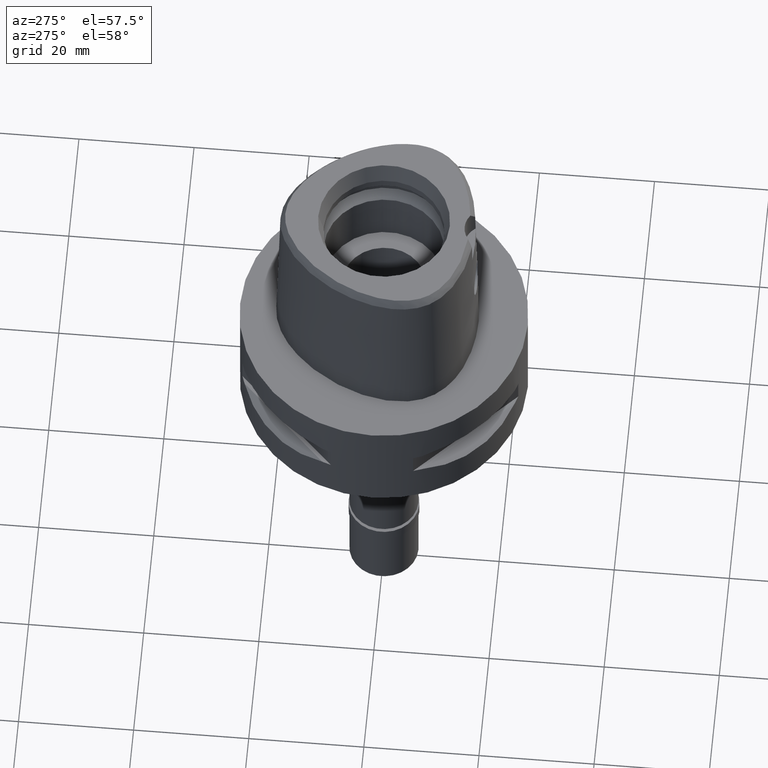
[diagram: clean part render]
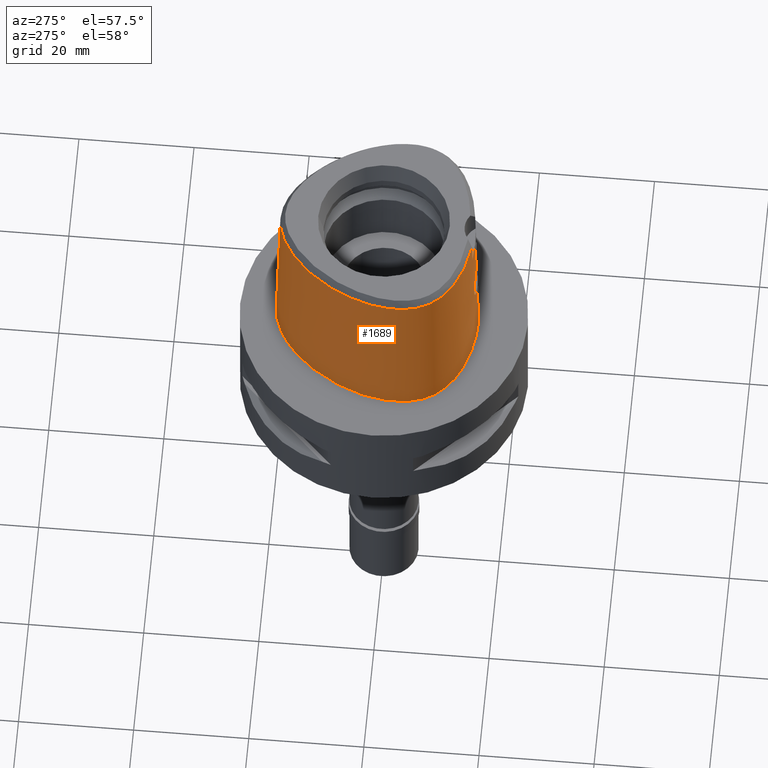
[diagram: same view with one face highlighted and labeled with its STEP entity id]
A machine part, auxiliary view. The second image highlights one B-rep face of the part: STEP entity #1689.
In plain terms, the highlighted face is a freeform B-spline surface patch.
Its self-contained STEP definition (entity closure, byte-faithful):
#7 = FACE_OUTER_BOUND ( 'NONE', #4243, .T. ) ;
#26 = CARTESIAN_POINT ( 'NONE',  ( -2.676760126935361583, -16.01335860443708015, 12.53714519679416917 ) ) ;
#33 = CARTESIAN_POINT ( 'NONE',  ( -4.522582266259999706, 17.29581184233000357, 19.20396091642000158 ) ) ;
#48 = CARTESIAN_POINT ( 'NONE',  ( -2.326795673539356013, -16.05749942887523574, 12.02743345691540355 ) ) ;
#68 = CARTESIAN_POINT ( 'NONE',  ( -2.828519626698094314, -15.99018834924776833, 12.85893844538407649 ) ) ;
#77 = CARTESIAN_POINT ( 'NONE',  ( -7.668807713895000155, 15.44980314576999980, 19.20396091642000158 ) ) ;
#103 = CARTESIAN_POINT ( 'NONE',  ( -17.47781018882999859, -3.270737581818000006, 9.316773117868001108 ) ) ;
#171 = CARTESIAN_POINT ( 'NONE',  ( -11.46563508061945313, 12.45218750032300470, -1.997948017424221179E-08 ) ) ;
#189 = CARTESIAN_POINT ( 'NONE',  ( -8.951632340789998921, -15.05250171730999931, -0.5704146806858000351 ) ) ;
#235 = CARTESIAN_POINT ( 'NONE',  ( -8.782085141137999429, -14.58525468396999969, 19.20396091642000158 ) ) ;
#241 = CARTESIAN_POINT ( 'NONE',  ( -1.331640452534565089, -16.00477934145681047, 16.74576209628363088 ) ) ;
#251 = CARTESIAN_POINT ( 'NONE',  ( 9.149224941310999693E-11, 18.69499999997999851, 2.020975979159000139E-13 ) ) ;
#266 = CARTESIAN_POINT ( 'NONE',  ( -13.05575607499000057, -11.90823715103000069, 29.09114871498000099 ) ) ;
#271 = CARTESIAN_POINT ( 'NONE',  ( -0.9200171648280662806, -16.01717542030823083, 16.90838961258444328 ) ) ;
#296 = CARTESIAN_POINT ( 'NONE',  ( -2.147290074988020603, -15.96826519308855019, 16.16606823402931070 ) ) ;
#320 = CARTESIAN_POINT ( 'NONE',  ( -2.757857542921389182, -15.93590525390334989, 15.30389640928843065 ) ) ;
#323 = B_SPLINE_CURVE_WITH_KNOTS ( 'NONE', 3,
 ( #3612, #2562, #3316, #2950, #4805, #271, #4058, #637, #1399, #686, #2537, #1722, #1775, #241, #1749, #3661, #956, #3590, #4702, #4032, #1350, #2465, #982, #2902, #3958, #3218, #2509, #661, #296, #4003, #2881, #1803, #2191, #3289, #320, #1828, #593, #2856, #1003, #4781, #1425, #2927, #3246, #2093, #4342, #2489, #4731, #1374, #1081, #2970, #1129, #4168, #1541, #424, #4145, #2306, #68, #753, #4466, #3363, #3707, #26, #1945, #4491, #2611, #373, #2677, #1852, #3750, #1873, #48, #4104, #395, #1469, #2281, #351, #2262, #4533, #1922, #2635, #2588, #1152, #3774, #1892, #4442, #4125, #2656, #3387, #1517, #3409 ),
 .UNSPECIFIED., .F., .F.,
 ( 4, 2, 2, 1, 1, 1, 2, 2, 2, 2, 1, 2, 2, 2, 1, 1, 2, 2, 2, 2, 1, 1, 1, 2, 2, 2, 2, 2, 2, 2, 2, 1, 1, 1, 2, 2, 2, 2, 1, 2, 2, 2, 1, 1, 2, 2, 2, 2, 1, 1, 1, 2, 2, 4 ),
 ( 0.0000000000000000000, 0.06250000000001257328, 0.09375000000001874889, 0.1093750000000218436, 0.1171875000000235922, 0.1210937500000246053, 0.1230468750000253408, 0.1250000000000260625, 0.1562500000000369427, 0.1718750000000420775, 0.1796875000000446310, 0.1835937500000459077, 0.1875000000000471567, 0.2187500000000533185, 0.2343750000000560385, 0.2421875000000577594, 0.2460937500000586198, 0.2500000000000594524, 0.3125000000000707767, 0.3437500000000764389, 0.3593750000000792144, 0.3671875000000803246, 0.3710937500000808797, 0.3730468750000808242, 0.3750000000000807687, 0.4375000000000756617, 0.4687500000000731637, 0.4843750000000718869, 0.5000000000000706102, 0.5625000000000655032, 0.5937500000000627276, 0.6093750000000612843, 0.6171875000000606182, 0.6210937500000599520, 0.6230468750000597300, 0.6250000000000593969, 0.6562500000000583977, 0.6718750000000576206, 0.6796875000000570655, 0.6835937500000566214, 0.6875000000000561773, 0.7187500000000522915, 0.7343750000000504041, 0.7421875000000491829, 0.7460937500000486278, 0.7500000000000480727, 0.8125000000000393019, 0.8437500000000349720, 0.8593750000000325295, 0.8671875000000313083, 0.8710937500000306422, 0.8730468750000303091, 0.8750000000000298650, 1.000000000000000000 ),
 .UNSPECIFIED. ) ;
#351 = CARTESIAN_POINT ( 'NONE',  ( -2.167461438340668511, -16.07478142648848518, 11.85411610869220667 ) ) ;
#372 = CARTESIAN_POINT ( 'NONE',  ( -14.26907056455178591, -10.79012254419424899, 28.52071192347005280 ) ) ;
#373 = CARTESIAN_POINT ( 'NONE',  ( -2.567601606276564752, -16.02824055683983673, 12.35375696231888831 ) ) ;
#393 = ORIENTED_EDGE ( 'NONE', *, *, #3799, .T. ) ;
#395 = CARTESIAN_POINT ( 'NONE',  ( -2.218346767529178809, -16.06939536445589667, 11.90655067609835527 ) ) ;
#402 = EDGE_CURVE ( 'NONE', #1822, #652, #2847, .T. ) ;
#424 = CARTESIAN_POINT ( 'NONE',  ( -2.884965141857559701, -15.98065922520799909, 13.00785839096715613 ) ) ;
#431 = CARTESIAN_POINT ( 'NONE',  ( -11.47659488472999989, 12.46143684821999820, -0.5704146806858000351 ) ) ;
#453 = CARTESIAN_POINT ( 'NONE',  ( -11.28662494016000117, 12.30111481238999893, 9.316773117868001108 ) ) ;
#473 = CARTESIAN_POINT ( 'NONE',  ( -17.02224577081999968, -0.3128848842176000788, 19.20396091642000158 ) ) ;
#562 = CARTESIAN_POINT ( 'NONE',  ( -16.45596373045999883, -8.350972137980999577, 9.316773117868001108 ) ) ;
#587 = CARTESIAN_POINT ( 'NONE',  ( -5.009809422728999984, -15.92506882122999734, 9.316773117868001108 ) ) ;
#589 = CARTESIAN_POINT ( 'NONE',  ( -17.56373942983117686, -5.455996093821116943, -1.997948017424221179E-08 ) ) ;
#593 = CARTESIAN_POINT ( 'NONE',  ( -2.804416461968547214, -15.93383585885219844, 15.19914549896493838 ) ) ;
#609 = CARTESIAN_POINT ( 'NONE',  ( -11.44887812729999865, -13.28533851839999969, 19.20396091642000158 ) ) ;
#629 = CARTESIAN_POINT ( 'NONE',  ( -15.57503089602999857, -8.992248279397999866, 29.09114871498000099 ) ) ;
#637 = CARTESIAN_POINT ( 'NONE',  ( -1.080687980687604854, -16.01283629952125054, 16.85233897233315048 ) ) ;
#652 = VERTEX_POINT ( 'NONE', #3675 ) ;
#656 = CARTESIAN_POINT ( 'NONE',  ( -16.00353254970000094, -8.149703180838001160, 29.09114871498000099 ) ) ;
#661 = CARTESIAN_POINT ( 'NONE',  ( -2.139722381399849382, -15.96867257770622217, 16.17353267031746711 ) ) ;
#683 = ORIENTED_EDGE ( 'NONE', *, *, #1291, .T. ) ;
#686 = CARTESIAN_POINT ( 'NONE',  ( -1.142332392165549493, -16.01097948216497713, 16.82800652385463636 ) ) ;
#706 = CARTESIAN_POINT ( 'NONE',  ( -1.893775706186628049, 17.84807082154121716, 28.52071192347005280 ) ) ;
#731 = CARTESIAN_POINT ( 'NONE',  ( -13.06460239552742308, -11.91950051571652125, 28.52071192347005280 ) ) ;
#740 = CARTESIAN_POINT ( 'NONE',  ( -17.33218229471999905, -5.422849682833001062, 9.316773117868001108 ) ) ;
#753 = CARTESIAN_POINT ( 'NONE',  ( -2.823487070365361618, -15.99101270351569681, 12.84654193248369047 ) ) ;
#777 = CARTESIAN_POINT ( 'NONE',  ( -3.191384176940533557, -15.58827403572775339, 27.24714128231333277 ) ) ;
#807 = CARTESIAN_POINT ( 'NONE',  ( -7.514850670160999613, 15.25369622576999973, 29.09114871498000099 ) ) ;
#823 = DIRECTION ( 'NONE',  ( 4.211615255917894324E-12, 0.02499051285773934081, -0.9996876883642746847 ) ) ;
#830 = CARTESIAN_POINT ( 'NONE',  ( -0.4636176460799000254, 18.23430324334999852, 19.20396091642000158 ) ) ;
#918 = CARTESIAN_POINT ( 'NONE',  ( -14.25868488915000043, -10.78027802383000200, 29.09114871498000099 ) ) ;
#948 = CARTESIAN_POINT ( 'NONE',  ( -4.965998101669999443, -15.68039695804000111, 19.20396091642000158 ) ) ;
#952 = CARTESIAN_POINT ( 'NONE',  ( -17.16495051829086904, -7.165908203267024490, -1.997948017424221179E-08 ) ) ;
#956 = CARTESIAN_POINT ( 'NONE',  ( -1.578081282703815091, -15.99520688258742851, 16.61014732801110583 ) ) ;
#975 = CARTESIAN_POINT ( 'NONE',  ( -16.46533705275000159, -6.958244293683000237, 29.09114871498000099 ) ) ;
#978 = B_SPLINE_CURVE_WITH_KNOTS ( 'NONE', 3,
 ( #3954, #2034, #3165, #1272, #3530, #171, #1667, #2433, #4603, #3215, #589, #952, #3189, #4676, #2461, #2090, #1346, #2878, #3355, #2628, #3764, #1461 ),
 .UNSPECIFIED., .F., .F.,
 ( 4, 1, 1, 1, 1, 1, 1, 1, 1, 1, 1, 1, 1, 1, 1, 1, 1, 1, 1, 4 ),
 ( 0.0000000000000000000, 0.04166666666846000067, 0.08333333333505001106, 0.1666666666683000175, 0.2500000000013999912, 0.3333333333346000238, 0.4166666666678000008, 0.5000000000009999779, 0.5416666666675999942, 0.5833333333340999793, 0.6250000000008000267, 0.6458333333340000593, 0.6666666666674000430, 0.6875000000005999645, 0.7083333333339000282, 0.7500000000005000445, 0.7916666666671999808, 0.8333333333336999660, 0.9166666666668999985, 1.000000000000000000 ),
 .UNSPECIFIED. ) ;
#982 = CARTESIAN_POINT ( 'NONE',  ( -1.858121229638787231, -15.98284882596964707, 16.42071856142420572 ) ) ;
#991 = ORIENTED_EDGE ( 'NONE', *, *, #2266, .F. ) ;
#997 = CARTESIAN_POINT ( 'NONE',  ( -1.321318947044999970, -16.50155084573999886, -0.5704146806858000351 ) ) ;
#1003 = CARTESIAN_POINT ( 'NONE',  ( -2.814800487489022451, -15.93339868692384265, 15.17448999603935178 ) ) ;
#1016 = B_SPLINE_CURVE_WITH_KNOTS ( 'NONE', 3,
 ( #2175, #1062, #4787, #2570 ),
 .UNSPECIFIED., .F., .F.,
 ( 4, 4 ),
 ( 0.0000000000000000000, 1.000000000000000000 ),
 .UNSPECIFIED. ) ;
#1062 = CARTESIAN_POINT ( 'NONE',  ( 6.782144086381197205E-08, -15.90128720080419633, 22.15000025259109506 ) ) ;
#1080 = CARTESIAN_POINT ( 'NONE',  ( -8.702202515497454272, -14.36510996956265274, 28.52071192347005280 ) ) ;
#1081 = CARTESIAN_POINT ( 'NONE',  ( -3.049900212868040583, -15.94261167837582605, 13.81468546120752272 ) ) ;
#1128 = CARTESIAN_POINT ( 'NONE',  ( -11.33338053121734568, -13.08225253590195436, 28.52071192347005280 ) ) ;
#1129 = CARTESIAN_POINT ( 'NONE',  ( -2.977125115133987698, -15.96287852150346787, 13.32982323607668107 ) ) ;
#1137 = CARTESIAN_POINT ( 'NONE',  ( -17.72574105970000247, -3.269125760296999861, -0.5704146806858000351 ) ) ;
#1152 = CARTESIAN_POINT ( 'NONE',  ( -1.304824586065963521, -16.14367980511032385, 11.24258093298036343 ) ) ;
#1155 = CARTESIAN_POINT ( 'NONE',  ( -3.168920966622999824, -15.55911077538999976, 28.52071192346999950 ) ) ;
#1159 = CARTESIAN_POINT ( 'NONE',  ( -13.96223224694000109, 8.061115400702000500, 19.20396091642000158 ) ) ;
#1272 = CARTESIAN_POINT ( 'NONE',  ( -4.728927207030408475, 17.73480468795576925, -1.997948017424221179E-08 ) ) ;
#1291 = EDGE_CURVE ( 'NONE', #4007, #4285, #4822, .T. ) ;
#1293 = CARTESIAN_POINT ( 'NONE',  ( 0.5756361491328999547, 18.69183959967999797, -0.5704146806858000351 ) ) ;
#1299 = CARTESIAN_POINT ( 'NONE',  ( 2.030224829794000080E-07, -15.83752876601000281, 24.70000006102999990 ) ) ;
#1317 = CARTESIAN_POINT ( 'NONE',  ( -1.309813752259999964, -16.25411917758000158, 9.316773117868001108 ) ) ;
#1342 = CARTESIAN_POINT ( 'NONE',  ( -16.22974814007999811, -8.250337659409000324, 19.20396091642000158 ) ) ;
#1344 = ORIENTED_EDGE ( 'NONE', *, *, #4231, .F. ) ;
#1346 = CARTESIAN_POINT ( 'NONE',  ( -13.50690093511656187, -12.48264648476968652, -1.997948017424221179E-08 ) ) ;
#1350 = CARTESIAN_POINT ( 'NONE',  ( -1.684236301195920271, -15.99068050411803554, 16.54283389550613492 ) ) ;
#1359 = EDGE_CURVE ( 'NONE', #3188, #1777, #1016, .T. ) ;
#1367 = CARTESIAN_POINT ( 'NONE',  ( -1.286803362689000085, -15.75925584125999812, 29.09114871498000099 ) ) ;
#1374 = CARTESIAN_POINT ( 'NONE',  ( -3.050024389103566325, -15.93682728871436893, 14.04426652284395693 ) ) ;
#1382 = VECTOR ( 'NONE', #1686, 1000.000000000000114 ) ;
#1393 = CARTESIAN_POINT ( 'NONE',  ( -13.20908635414000010, -12.10346123817999953, 19.20396091642000158 ) ) ;
#1399 = CARTESIAN_POINT ( 'NONE',  ( -1.123850819245109767, -16.01154604563820882, 16.83544840130055320 ) ) ;
#1425 = CARTESIAN_POINT ( 'NONE',  ( -2.897875851387718527, -15.92997726602834341, 14.97345579578013997 ) ) ;
#1446 = CARTESIAN_POINT ( 'NONE',  ( -10.91764528035567849, 11.98972044748084542, 28.52071192347005280 ) ) ;
#1461 = CARTESIAN_POINT ( 'NONE',  ( -2.483279531538000286E-11, -16.45500000000000185, 2.033558506771999855E-13 ) ) ;
#1469 = CARTESIAN_POINT ( 'NONE',  ( -2.192347023517017490, -16.07215629485219210, 11.87955887064578420 ) ) ;
#1490 = CARTESIAN_POINT ( 'NONE',  ( -16.79165457291478702, -0.3537785057483261442, 28.52071192347005280 ) ) ;
#1500 = CARTESIAN_POINT ( 'NONE',  ( 2.030224829794000080E-07, -15.83752876601000281, 24.70000006102999990 ) ) ;
#1501 = CARTESIAN_POINT ( 'NONE',  ( -15.82879753374000131, 3.455165198570000484, 29.09114871498000099 ) ) ;
#1517 = CARTESIAN_POINT ( 'NONE',  ( -0.3804472261490731144, -16.18126839358999547, 10.94999999999999751 ) ) ;
#1525 = CARTESIAN_POINT ( 'NONE',  ( -14.39249255184999932, 8.309508948492998925, -0.5704146806858000351 ) ) ;
#1541 = CARTESIAN_POINT ( 'NONE',  ( -2.909137552899625945, -15.97627371699405430, 13.08234413149750885 ) ) ;
#1542 = CARTESIAN_POINT ( 'NONE',  ( -2.866356467587000151E-11, 17.98202997909999823, 28.52071728569000086 ) ) ;
#1572 = CARTESIAN_POINT ( 'NONE',  ( -7.976721801362999464, 15.84201698576999995, -0.5704146806858000351 ) ) ;
#1597 = CARTESIAN_POINT ( 'NONE',  ( -17.22987931796000183, -3.272349403339000151, 19.20396091642000158 ) ) ;
#1667 = CARTESIAN_POINT ( 'NONE',  ( -14.38008119733511769, 8.302343750250026133, -1.997948017424221179E-08 ) ) ;
#1686 = DIRECTION ( 'NONE',  ( -1.984917666635950976E-12, -0.02499051295371941192, -0.9996876883618752707 ) ) ;
#1688 = CARTESIAN_POINT ( 'NONE',  ( -16.84071409064999969, -5.352498116804000006, 29.09114871498000099 ) ) ;
#1689 = ADVANCED_FACE ( 'NONE', ( #7 ), #2728, .T. ) ;
#1722 = CARTESIAN_POINT ( 'NONE',  ( -1.161963448143041200, -16.01037049747069929, 16.81999471490744824 ) ) ;
#1730 = B_SPLINE_CURVE_WITH_KNOTS ( 'NONE', 3,
 ( #1299, #4312, #2754, #4221 ),
 .UNSPECIFIED., .F., .F.,
 ( 4, 4 ),
 ( 0.0000000000000000000, 1.000000000000000000 ),
 .UNSPECIFIED. ) ;
#1740 = CARTESIAN_POINT ( 'NONE',  ( -17.17866842889000267, -7.169980044486000459, -0.5704146806858000351 ) ) ;
#1741 = VECTOR ( 'NONE', #823, 1000.000000000000114 ) ;
#1749 = CARTESIAN_POINT ( 'NONE',  ( -1.464230115295340973, -15.99978155752990538, 16.67600899017843119 ) ) ;
#1769 = CARTESIAN_POINT ( 'NONE',  ( 1.089046662257999953, -16.44835921873999851, -0.5704146806858000351 ) ) ;
#1775 = CARTESIAN_POINT ( 'NONE',  ( -1.246904710687278595, -16.00770134240468323, 16.78481881917274876 ) ) ;
#1777 = VERTEX_POINT ( 'NONE', #2209 ) ;
#1803 = CARTESIAN_POINT ( 'NONE',  ( -2.615901618694458364, -15.94298692150383800, 15.57147967510174880 ) ) ;
#1822 = VERTEX_POINT ( 'NONE', #3747 ) ;
#1826 = CARTESIAN_POINT ( 'NONE',  ( -13.75951393052746496, 7.944084103042573730, 28.52071192347005280 ) ) ;
#1828 = CARTESIAN_POINT ( 'NONE',  ( -2.789432624428044516, -15.93448362604004842, 15.23385107220369861 ) ) ;
#1852 = CARTESIAN_POINT ( 'NONE',  ( -2.543826128444885537, -16.03134158490991368, 12.31726274100129181 ) ) ;
#1872 = CARTESIAN_POINT ( 'NONE',  ( -16.85489160761262184, -5.354527567564943524, 28.52071192347005280 ) ) ;
#1873 = CARTESIAN_POINT ( 'NONE',  ( -2.421847348362509589, -16.04659734725418829, 12.14335169878023102 ) ) ;
#1892 = CARTESIAN_POINT ( 'NONE',  ( -1.200046882047371088, -16.14948273154543656, 11.19596910874573226 ) ) ;
#1903 = CARTESIAN_POINT ( 'NONE',  ( 0.3539521785775999740, 17.96246305550999622, 29.09114871498000099 ) ) ;
#1922 = CARTESIAN_POINT ( 'NONE',  ( -1.572520811367744908, -16.12649376600621665, 11.38472095010851248 ) ) ;
#1929 = CARTESIAN_POINT ( 'NONE',  ( 0.5606135752195000599, 18.44514042089999606, 9.316773117868001108 ) ) ;
#1945 = CARTESIAN_POINT ( 'NONE',  ( -2.651693848328784409, -16.01689519106128046, 12.49206992028460661 ) ) ;
#1952 = CARTESIAN_POINT ( 'NONE',  ( -11.09665499559000068, 12.14079277656000144, 19.20396091642000158 ) ) ;
#1970 = CARTESIAN_POINT ( 'NONE',  ( -16.77753616371999712, -0.3562822998544000197, 29.09114871498000099 ) ) ;
#2012 = CARTESIAN_POINT ( 'NONE',  ( -3.235121119988999983, -15.64755630481999837, 24.69999999999999929 ) ) ;
#2034 = CARTESIAN_POINT ( 'NONE',  ( -0.6801907858939482132, 18.69500000050583921, -1.997948017424221179E-08 ) ) ;
#2053 = ORIENTED_EDGE ( 'NONE', *, *, #1359, .F. ) ;
#2058 = CARTESIAN_POINT ( 'NONE',  ( -15.05961625570999907, -9.784614148091998587, 29.09114871498000099 ) ) ;
#2075 = EDGE_CURVE ( 'NONE', #3188, #2828, #1730, .T. ) ;
#2090 = CARTESIAN_POINT ( 'NONE',  ( -14.78833380436338274, -11.28232910190557270, -1.997948017424221179E-08 ) ) ;
#2093 = CARTESIAN_POINT ( 'NONE',  ( -3.027041479268463231, -15.93083733890005682, 14.38613028389027981 ) ) ;
#2108 = CARTESIAN_POINT ( 'NONE',  ( -16.70311417813000077, -7.028822877283999127, 19.20396091642000158 ) ) ;
#2135 = CARTESIAN_POINT ( 'NONE',  ( 1.070056060540999887, -15.95437367609999946, 19.20396091642000158 ) ) ;
#2162 = CARTESIAN_POINT ( 'NONE',  ( -11.69401646400999972, -13.71637917768000037, -0.5704146806858000351 ) ) ;
#2172 = CARTESIAN_POINT ( 'NONE',  ( -3.168920966622999824, -15.55911077538999976, 28.52071192346999950 ) ) ;
#2175 = CARTESIAN_POINT ( 'NONE',  ( 2.030224829794000080E-07, -15.83752876601000281, 24.70000006102999990 ) ) ;
#2191 = CARTESIAN_POINT ( 'NONE',  ( -2.663989615078775852, -15.94049756288810471, 15.48802251322130630 ) ) ;
#2209 = CARTESIAN_POINT ( 'NONE',  ( 0.0000000000000000000, -16.02877864023999877, 17.05000000000000071 ) ) ;
#2239 = CARTESIAN_POINT ( 'NONE',  ( -3.168920966622999824, -15.55911077538999976, 28.52071192346999950 ) ) ;
#2246 = CARTESIAN_POINT ( 'NONE',  ( -2.866356467587000151E-11, 17.98202997909999823, 28.52071728569000086 ) ) ;
#2248 = CARTESIAN_POINT ( 'NONE',  ( -17.08644819267999893, -5.387673899817999157, 19.20396091642000158 ) ) ;
#2262 = CARTESIAN_POINT ( 'NONE',  ( -1.994661405231819451, -16.09284332352418545, 11.68121651172288011 ) ) ;
#2266 = EDGE_CURVE ( 'NONE', #1777, #1822, #323, .T. ) ;
#2269 = CARTESIAN_POINT ( 'NONE',  ( -0.4764648012068000149, 18.48199782537999525, 9.316773117868001108 ) ) ;
#2281 = CARTESIAN_POINT ( 'NONE',  ( -2.174903967716026898, -16.07399873101336851, 11.86167149722171743 ) ) ;
#2291 = CARTESIAN_POINT ( 'NONE',  ( 0.3838142946262000366, 18.70350312473000187, -0.5704146806858000351 ) ) ;
#2302 = CARTESIAN_POINT ( 'NONE',  ( -3.235121119988999983, -15.64755630481999837, 24.69999999999999929 ) ) ;
#2306 = CARTESIAN_POINT ( 'NONE',  ( -2.835998777458668574, -15.98895818849806183, 12.87753709205216168 ) ) ;
#2312 = CARTESIAN_POINT ( 'NONE',  ( -2.043508292972999740, 18.56419796944999945, -0.5704146806858000351 ) ) ;
#2339 = CARTESIAN_POINT ( 'NONE',  ( -13.74710209447999887, 7.936918626806000354, 29.09114871498000099 ) ) ;
#2431 = CARTESIAN_POINT ( 'NONE',  ( -1.298308557473999869, -16.00668750941999718, 19.20396091642000158 ) ) ;
#2433 = CARTESIAN_POINT ( 'NONE',  ( -16.51672824827169350, 3.703437500170723151, -1.997948017424221179E-08 ) ) ;
#2461 = CARTESIAN_POINT ( 'NONE',  ( -15.64884224296236503, -10.21298828154690064, -1.997948017424221179E-08 ) ) ;
#2465 = CARTESIAN_POINT ( 'NONE',  ( -1.777739861705566193, -15.98655714082981127, 16.48034954023966492 ) ) ;
#2483 = CARTESIAN_POINT ( 'NONE',  ( -15.25987606824000054, -9.930205356746000689, 19.20396091642000158 ) ) ;
#2489 = CARTESIAN_POINT ( 'NONE',  ( -3.044373801969535442, -15.93377869067411723, 14.19140803545593421 ) ) ;
#2503 = CARTESIAN_POINT ( 'NONE',  ( 1.079551361399000209, -16.20136644741999987, 9.316773117868001108 ) ) ;
#2509 = CARTESIAN_POINT ( 'NONE',  ( -2.121841374835716110, -15.96962928976706309, 16.19099185722725309 ) ) ;
#2537 = CARTESIAN_POINT ( 'NONE',  ( -1.154649350552922948, -16.01059875151096890, 16.82300001247303456 ) ) ;
#2562 = CARTESIAN_POINT ( 'NONE',  ( -0.1860095695891537393, -16.02877864023999166, 17.04999999999999716 ) ) ;
#2570 = CARTESIAN_POINT ( 'NONE',  ( 0.0000000000000000000, -16.02877864023999877, 17.05000000000000071 ) ) ;
#2588 = CARTESIAN_POINT ( 'NONE',  ( -1.365876440252946633, -16.14000093520530399, 11.27254294479042507 ) ) ;
#2609 = CARTESIAN_POINT ( 'NONE',  ( -16.01658395503334376, -8.155509241190134873, 28.52071192347005280 ) ) ;
#2611 = CARTESIAN_POINT ( 'NONE',  ( -2.589913444526261266, -16.02530027108240063, 12.38873572170438919 ) ) ;
#2628 = CARTESIAN_POINT ( 'NONE',  ( -5.051093167661591110, -16.15562500049017203, -1.997948017424221179E-08 ) ) ;
#2635 = CARTESIAN_POINT ( 'NONE',  ( -1.489022098419276796, -16.13222843889004565, 11.33656707562941968 ) ) ;
#2656 = CARTESIAN_POINT ( 'NONE',  ( -1.171575576434862320, -16.15098385800270719, 11.18398276020155890 ) ) ;
#2663 = CARTESIAN_POINT ( 'NONE',  ( -16.53021708533000123, 3.708305584341999861, -0.5704146806858000351 ) ) ;
#2675 = B_SPLINE_CURVE_WITH_KNOTS ( 'NONE', 3,
 ( #1155, #777, #4537, #2012 ),
 .UNSPECIFIED., .F., .F.,
 ( 4, 4 ),
 ( 0.0000000000000000000, 1.000000000000000000 ),
 .UNSPECIFIED. ) ;
#2677 = CARTESIAN_POINT ( 'NONE',  ( -2.552453281223320936, -16.03022206925511384, 12.33036638904223814 ) ) ;
#2688 = CARTESIAN_POINT ( 'NONE',  ( 0.3738602559433000239, 18.45648976832000088, 9.316773117868001108 ) ) ;
#2709 = CARTESIAN_POINT ( 'NONE',  ( 0.3639062172604000112, 18.20947641192000077, 19.20396091642000158 ) ) ;
#2728 = B_SPLINE_SURFACE_WITH_KNOTS ( 'NONE', 3, 3, ( 
 ( #1293, #1929, #4134, #4520 ),
 ( #2291, #2688, #2709, #1903 ),
 ( #3396, #2269, #830, #3439 ),
 ( #2312, #3758, #3738, #4176 ),
 ( #3463, #3417, #33, #3782 ),
 ( #1572, #3805, #77, #807 ),
 ( #431, #453, #1952, #3065 ),
 ( #1525, #4567, #1159, #2339 ),
 ( #2663, #3370, #4152, #1501 ),
 ( #3829, #3003, #473, #1970 ),
 ( #1137, #103, #1597, #3089 ),
 ( #4648, #740, #2248, #1688 ),
 ( #1740, #3187, #2108, #975 ),
 ( #3239, #562, #1342, #656 ),
 ( #3998, #3557, #3951, #629 ),
 ( #4336, #4674, #2483, #2058 ),
 ( #2849, #4306, #3920, #918 ),
 ( #3977, #4025, #1393, #266 ),
 ( #2162, #4776, #609, #2820 ),
 ( #189, #3606, #235, #4749 ),
 ( #4725, #587, #948, #2897 ),
 ( #997, #1317, #2431, #1367 ),
 ( #3655, #2872, #3584, #4360 ),
 ( #1769, #2503, #2135, #3629 ) ),
 .UNSPECIFIED., .F., .F., .F.,
 ( 4, 1, 1, 1, 1, 1, 1, 1, 1, 1, 1, 1, 1, 1, 1, 1, 1, 1, 1, 1, 1, 4 ),
 ( 4, 4 ),
 ( -0.01173812893910999855, 0.0000000000000000000, 0.04166666666846000067, 0.08333333333505001106, 0.1666666666683000175, 0.2500000000013999912, 0.3333333333346000238, 0.4166666666678000008, 0.5000000000009999779, 0.5416666666675999942, 0.5833333333340999793, 0.6250000000008000267, 0.6458333333340000593, 0.6666666666674000430, 0.6875000000005999645, 0.7083333333339000282, 0.7500000000005000445, 0.7916666666671999808, 0.8333333333336999660, 0.9166666666668999985, 1.000000000000000000, 1.017968513185000035 ),
 ( 2.094797720703000145E-09, 0.9999998931653000245 ),
 .UNSPECIFIED. ) ;
#2754 = CARTESIAN_POINT ( 'NONE',  ( -2.169052023958185416, -15.77399788493385735, 24.70000016923098229 ) ) ;
#2820 = CARTESIAN_POINT ( 'NONE',  ( -11.32630895894000034, -13.06981818875999934, 29.09114871498000099 ) ) ;
#2828 = VERTEX_POINT ( 'NONE', #2302 ) ;
#2847 = LINE ( 'NONE', #3949, #1382 ) ;
#2849 = CARTESIAN_POINT ( 'NONE',  ( -14.79871907684000121, -11.29217324034000036, -0.5704146806858000351 ) ) ;
#2856 = CARTESIAN_POINT ( 'NONE',  ( -2.810669180506640608, -15.93357175435965090, 15.18434255725068383 ) ) ;
#2872 = CARTESIAN_POINT ( 'NONE',  ( 0.7201291707689999599, -16.21519148497999652, 9.316773117868001108 ) ) ;
#2878 = CARTESIAN_POINT ( 'NONE',  ( -11.68694516608307765, -13.70394531294397211, -1.997948017424221179E-08 ) ) ;
#2881 = CARTESIAN_POINT ( 'NONE',  ( -2.453157249243883342, -15.95160785209460919, 15.82331514068930822 ) ) ;
#2897 = CARTESIAN_POINT ( 'NONE',  ( -4.922186780611999879, -15.43572509485999866, 29.09114871498000099 ) ) ;
#2902 = CARTESIAN_POINT ( 'NONE',  ( -1.974011923641829203, -15.97722169910675127, 16.32556985268866967 ) ) ;
#2927 = CARTESIAN_POINT ( 'NONE',  ( -2.955918695227826909, -15.92874700794739695, 14.77770287554773709 ) ) ;
#2949 = CARTESIAN_POINT ( 'NONE',  ( -3.738627773283101696, -15.49270868799859358, 28.52071192347005280 ) ) ;
#2950 = CARTESIAN_POINT ( 'NONE',  ( -0.6729281202612352741, -16.02259025627639843, 16.97651237904580768 ) ) ;
#2970 = CARTESIAN_POINT ( 'NONE',  ( -3.033174470079177620, -15.94941370605617159, 13.62317640955338938 ) ) ;
#2991 = CARTESIAN_POINT ( 'NONE',  ( -15.84228689413422231, 3.460033471611971834, 28.52071192347005280 ) ) ;
#3003 = CARTESIAN_POINT ( 'NONE',  ( -17.26695537792000223, -0.2694874685807999715, 9.316773117868001108 ) ) ;
#3065 = CARTESIAN_POINT ( 'NONE',  ( -10.90668505103000108, 11.98047074073000040, 29.09114871498000099 ) ) ;
#3089 = CARTESIAN_POINT ( 'NONE',  ( -16.98194844708999796, -3.273961224860000296, 29.09114871498000099 ) ) ;
#3156 = ORIENTED_EDGE ( 'NONE', *, *, #402, .F. ) ;
#3165 = CARTESIAN_POINT ( 'NONE',  ( -2.040572357769602441, 18.55015625048720196, -1.997948017424221179E-08 ) ) ;
#3187 = CARTESIAN_POINT ( 'NONE',  ( -16.94089130350999994, -7.099401460885000681, 9.316773117868001108 ) ) ;
#3188 = VERTEX_POINT ( 'NONE', #1500 ) ;
#3189 = CARTESIAN_POINT ( 'NONE',  ( -16.66912842185212540, -8.445800781454124717, -1.997948017424221179E-08 ) ) ;
#3215 = CARTESIAN_POINT ( 'NONE',  ( -17.71143735611234860, -3.269218749996877449, -1.997948017424221179E-08 ) ) ;
#3218 = CARTESIAN_POINT ( 'NONE',  ( -2.094858927816013683, -15.97106233740291259, 16.21701581232883527 ) ) ;
#3239 = CARTESIAN_POINT ( 'NONE',  ( -16.68217932084000310, -8.451606616553000606, -0.5704146806858000351 ) ) ;
#3246 = CARTESIAN_POINT ( 'NONE',  ( -3.012997481774254194, -15.92993551890234727, 14.48403558617126663 ) ) ;
#3289 = CARTESIAN_POINT ( 'NONE',  ( -2.727932080404931625, -15.93733995233630196, 15.36492654819696391 ) ) ;
#3316 = CARTESIAN_POINT ( 'NONE',  ( -0.3789226270081169634, -16.02723154424909779, 17.03294418566286339 ) ) ;
#3355 = CARTESIAN_POINT ( 'NONE',  ( -8.946741556355959801, -15.03902343797420649, -1.997948017424221179E-08 ) ) ;
#3362 = CARTESIAN_POINT ( 'NONE',  ( -16.99625270562911084, -3.273868231552331753, 28.52071192347005280 ) ) ;
#3363 = CARTESIAN_POINT ( 'NONE',  ( -2.785351805582557017, -15.99721084885888445, 12.75429401941662277 ) ) ;
#3370 = CARTESIAN_POINT ( 'NONE',  ( -16.29641056812999977, 3.623925455750999891, 9.316773117868001108 ) ) ;
#3383 = ORIENTED_EDGE ( 'NONE', *, *, #4447, .T. ) ;
#3387 = CARTESIAN_POINT ( 'NONE',  ( -0.7803301224163371463, -16.17127761896325921, 11.02218832487901956 ) ) ;
#3396 = CARTESIAN_POINT ( 'NONE',  ( -0.4893119563336999489, 18.72969240740999908, -0.5704146806858000351 ) ) ;
#3409 = CARTESIAN_POINT ( 'NONE',  ( -3.091156698943000140E-12, -16.18126839358999902, 10.94999999999999929 ) ) ;
#3417 = CARTESIAN_POINT ( 'NONE',  ( -4.628819265357999591, 17.52182796062999870, 9.316773117868001108 ) ) ;
#3439 = CARTESIAN_POINT ( 'NONE',  ( -0.4507704909529000048, 17.98660866132999914, 29.09114871498000099 ) ) ;
#3463 = CARTESIAN_POINT ( 'NONE',  ( -4.735056264456000363, 17.74784407894000182, -0.5704146806858000351 ) ) ;
#3530 = CARTESIAN_POINT ( 'NONE',  ( -7.967839664535606659, 15.83070312539705249, -1.997948017424221179E-08 ) ) ;
#3557 = CARTESIAN_POINT ( 'NONE',  ( -16.00394173037999934, -9.239880065787000163, 9.316773117868001108 ) ) ;
#3584 = CARTESIAN_POINT ( 'NONE',  ( 0.7138086210016000299, -15.96808631044000037, 19.20396091642000158 ) ) ;
#3590 = CARTESIAN_POINT ( 'NONE',  ( -1.612726137497974221, -15.99376531707286020, 16.58900383221053687 ) ) ;
#3606 = CARTESIAN_POINT ( 'NONE',  ( -8.866858740964000063, -14.81887820064000039, 9.316773117868001108 ) ) ;
#3612 = CARTESIAN_POINT ( 'NONE',  ( 0.0000000000000000000, -16.02877864023999877, 17.05000000000000071 ) ) ;
#3629 = CARTESIAN_POINT ( 'NONE',  ( 1.060560759683000231, -15.70738090477000171, 29.09114871498000099 ) ) ;
#3655 = CARTESIAN_POINT ( 'NONE',  ( 0.7264497205365000321, -16.46229665952999710, -0.5704146806858000351 ) ) ;
#3661 = CARTESIAN_POINT ( 'NONE',  ( -1.509334869930127887, -15.99801316580342814, 16.65089544972779478 ) ) ;
#3675 = CARTESIAN_POINT ( 'NONE',  ( -2.483279531538000286E-11, -16.45500000000000185, 2.033558506771999855E-13 ) ) ;
#3707 = CARTESIAN_POINT ( 'NONE',  ( -2.746377481657159780, -16.00326057041208117, 12.66963668950923427 ) ) ;
#3728 = CARTESIAN_POINT ( 'NONE',  ( -16.47905549557314941, -6.962316292880237789, 28.52071192347005280 ) ) ;
#3738 = CARTESIAN_POINT ( 'NONE',  ( -1.941729202355999995, 18.07741836167999949, 19.20396091642000158 ) ) ;
#3747 = CARTESIAN_POINT ( 'NONE',  ( -3.091156698943000140E-12, -16.18126839358999902, 10.94999999999999929 ) ) ;
#3750 = CARTESIAN_POINT ( 'NONE',  ( -2.481413756882850485, -16.03938740154340437, 12.22374741087844718 ) ) ;
#3758 = CARTESIAN_POINT ( 'NONE',  ( -1.992618747665000134, 18.32080816556999991, 9.316773117868001108 ) ) ;
#3764 = CARTESIAN_POINT ( 'NONE',  ( -1.683697722558151755, -16.45500000049819178, -1.997948017424221179E-08 ) ) ;
#3774 = CARTESIAN_POINT ( 'NONE',  ( -1.234760267101668862, -16.14760890805742477, 11.21096960602431913 ) ) ;
#3782 = CARTESIAN_POINT ( 'NONE',  ( -4.416345267162000710, 17.06979572402000045, 29.09114871498000099 ) ) ;
#3799 = EDGE_CURVE ( 'NONE', #4285, #3930, #4192, .T. ) ;
#3805 = CARTESIAN_POINT ( 'NONE',  ( -7.822764757629000698, 15.64591006576999987, 9.316773117868001108 ) ) ;
#3829 = CARTESIAN_POINT ( 'NONE',  ( -17.51166498501999769, -0.2260900529440000029, -0.5704146806858000351 ) ) ;
#3873 = CARTESIAN_POINT ( 'NONE',  ( -2.866356467587000151E-11, 17.98202997909999823, 28.52071728569000086 ) ) ;
#3920 = CARTESIAN_POINT ( 'NONE',  ( -14.43869628504999980, -10.95090976266000027, 19.20396091642000158 ) ) ;
#3930 = VERTEX_POINT ( 'NONE', #251 ) ;
#3949 = CARTESIAN_POINT ( 'NONE',  ( -3.091156698943000140E-12, -16.18126839358999902, 10.94999999999999929 ) ) ;
#3951 = CARTESIAN_POINT ( 'NONE',  ( -15.78948631321000207, -9.116064172593000947, 19.20396091642000158 ) ) ;
#3954 = CARTESIAN_POINT ( 'NONE',  ( 9.149224941310999693E-11, 18.69499999997999851, 2.020975979159000139E-13 ) ) ;
#3958 = CARTESIAN_POINT ( 'NONE',  ( -2.030787586190756056, -15.97439197203214611, 16.27657083949468131 ) ) ;
#3977 = CARTESIAN_POINT ( 'NONE',  ( -13.51574691245000004, -12.49390941248000075, -0.5704146806858000351 ) ) ;
#3998 = CARTESIAN_POINT ( 'NONE',  ( -16.21839714755000017, -9.363695958981999468, -0.5704146806858000351 ) ) ;
#4003 = CARTESIAN_POINT ( 'NONE',  ( -2.319868985695881847, -15.95889227881325212, 15.99336665119922785 ) ) ;
#4007 = VERTEX_POINT ( 'NONE', #2172 ) ;
#4025 = CARTESIAN_POINT ( 'NONE',  ( -13.36241663329999874, -12.29868532533000014, 9.316773117868001108 ) ) ;
#4032 = CARTESIAN_POINT ( 'NONE',  ( -1.671121799475667968, -15.99125384014664775, 16.55147925627116834 ) ) ;
#4054 = ORIENTED_EDGE ( 'NONE', *, *, #2075, .T. ) ;
#4058 = CARTESIAN_POINT ( 'NONE',  ( -0.9942354941246662747, -16.01528989706931938, 16.88423654522987860 ) ) ;
#4080 = CARTESIAN_POINT ( 'NONE',  ( -4.422474562381206731, 17.08283562090321084, 28.52071192347005280 ) ) ;
#4103 = CARTESIAN_POINT ( 'NONE',  ( -5.902447850708569810, -15.16907854011898849, 28.52071192347005280 ) ) ;
#4104 = CARTESIAN_POINT ( 'NONE',  ( -2.277845221344409588, -16.06297226044945958, 11.97064251377653044 ) ) ;
#4125 = CARTESIAN_POINT ( 'NONE',  ( -1.175386497639693939, -16.15078445366179594, 11.18557374674743343 ) ) ;
#4132 = CARTESIAN_POINT ( 'NONE',  ( -0.6295828121029654056, 17.98203011042085109, 28.52071192347005280 ) ) ;
#4134 = CARTESIAN_POINT ( 'NONE',  ( 0.5455910013060999431, 18.19844124211999770, 19.20396091642000158 ) ) ;
#4145 = CARTESIAN_POINT ( 'NONE',  ( -2.852964108057065129, -15.98613240798082913, 12.92095709857100339 ) ) ;
#4152 = CARTESIAN_POINT ( 'NONE',  ( -16.06260405092999832, 3.539545327161000010, 19.20396091642000158 ) ) ;
#4168 = CARTESIAN_POINT ( 'NONE',  ( -2.953287761239812514, -15.96791042230702473, 13.23104891048737741 ) ) ;
#4176 = CARTESIAN_POINT ( 'NONE',  ( -1.890839657047000077, 17.83402855779999996, 29.09114871498000099 ) ) ;
#4192 = LINE ( 'NONE', #1542, #1741 ) ;
#4221 = CARTESIAN_POINT ( 'NONE',  ( -3.235121119988999983, -15.64755630481999837, 24.69999999999999929 ) ) ;
#4231 = EDGE_CURVE ( 'NONE', #4007, #2828, #2675, .T. ) ;
#4243 = EDGE_LOOP ( 'NONE', ( #3156, #991, #2053, #4054, #1344, #683, #393, #3383 ) ) ;
#4285 = VERTEX_POINT ( 'NONE', #3873 ) ;
#4306 = CARTESIAN_POINT ( 'NONE',  ( -14.61870768094000006, -11.12154150149999943, 9.316773117868001108 ) ) ;
#4312 = CARTESIAN_POINT ( 'NONE',  ( -1.084489118009074327, -15.83754148632386283, 24.70000016923098229 ) ) ;
#4336 = CARTESIAN_POINT ( 'NONE',  ( -15.66039569327999992, -10.22138777406000010, -0.5704146806858000351 ) ) ;
#4342 = CARTESIAN_POINT ( 'NONE',  ( -3.040936525959271997, -15.93294854341571742, 14.23999838212788838 ) ) ;
#4360 = CARTESIAN_POINT ( 'NONE',  ( 0.7074880712341999889, -15.72098113588999979, 29.09114871498000099 ) ) ;
#4441 = CARTESIAN_POINT ( 'NONE',  ( -15.07117015427603413, -9.793013966486137534, 28.52071192347005280 ) ) ;
#4442 = CARTESIAN_POINT ( 'NONE',  ( -1.185240961617869182, -16.15026635704341729, 11.18970954939990214 ) ) ;
#4447 = EDGE_CURVE ( 'NONE', #3930, #652, #978, .T. ) ;
#4465 = CARTESIAN_POINT ( 'NONE',  ( -15.58740380353316191, -8.999391780896207393, 28.52071192347005280 ) ) ;
#4466 = CARTESIAN_POINT ( 'NONE',  ( -2.820449305715940991, -15.99150796465939273, 12.83914045378499225 ) ) ;
#4491 = CARTESIAN_POINT ( 'NONE',  ( -2.611019405680786498, -16.02245593392139611, 12.42336243517980954 ) ) ;
#4520 = CARTESIAN_POINT ( 'NONE',  ( 0.5305684273926999373, 17.95174206333999933, 29.09114871498000099 ) ) ;
#4533 = CARTESIAN_POINT ( 'NONE',  ( -1.824495776585852047, -16.10763072133376639, 11.54770719424364955 ) ) ;
#4537 = CARTESIAN_POINT ( 'NONE',  ( -3.213444811939455636, -15.61774738279276953, 25.97357064115666603 ) ) ;
#4567 = CARTESIAN_POINT ( 'NONE',  ( -14.17736239938999887, 8.185312174598001533, 9.316773117868001108 ) ) ;
#4603 = CARTESIAN_POINT ( 'NONE',  ( -17.49754712356641662, -0.2285937499122741579, -1.997948017424221179E-08 ) ) ;
#4648 = CARTESIAN_POINT ( 'NONE',  ( -17.57791639675999917, -5.458025465847000213, -0.5704146806858000351 ) ) ;
#4674 = CARTESIAN_POINT ( 'NONE',  ( -15.46013588075999934, -10.07579656539999924, 9.316773117868001108 ) ) ;
#4676 = CARTESIAN_POINT ( 'NONE',  ( -16.20602472006970274, -9.356552734624793644, -1.997948017424221179E-08 ) ) ;
#4702 = CARTESIAN_POINT ( 'NONE',  ( -1.647720974870742650, -15.99226611569845247, 16.56665347346226724 ) ) ;
#4725 = CARTESIAN_POINT ( 'NONE',  ( -5.053620743787999636, -16.16974068440999801, -0.5704146806858000351 ) ) ;
#4731 = CARTESIAN_POINT ( 'NONE',  ( -3.048918288824035372, -15.93569181003061708, 14.09458409078623653 ) ) ;
#4749 = CARTESIAN_POINT ( 'NONE',  ( -8.697311541312000571, -14.35163116729999899, 29.09114871498000099 ) ) ;
#4776 = CARTESIAN_POINT ( 'NONE',  ( -11.57144729564999963, -13.50085884803999825, 9.316773117868001108 ) ) ;
#4781 = CARTESIAN_POINT ( 'NONE',  ( -2.816407481551031822, -15.93333177460183236, 15.17063687596105659 ) ) ;
#4787 = CARTESIAN_POINT ( 'NONE',  ( 6.797665270792341151E-08, -15.96503292052356748, 19.60000012629556565 ) ) ;
#4804 = CARTESIAN_POINT ( 'NONE',  ( -7.523733151595282997, 15.26501052509523326, 28.52071192347005280 ) ) ;
#4805 = CARTESIAN_POINT ( 'NONE',  ( -0.7716804096326577156, -16.02065638628776512, 16.95256773572744535 ) ) ;
#4822 = B_SPLINE_CURVE_WITH_KNOTS ( 'NONE', 3,
 ( #2239, #2949, #4103, #1080, #1128, #731, #372, #4441, #4465, #2609, #3728, #1872, #3362, #1490, #2991, #1826, #1446, #4804, #4080, #706, #4132, #2246 ),
 .UNSPECIFIED., .F., .F.,
 ( 4, 1, 1, 1, 1, 1, 1, 1, 1, 1, 1, 1, 1, 1, 1, 1, 1, 1, 1, 4 ),
 ( 0.0000000000000000000, 0.03108635432775441743, 0.1191694130250679773, 0.1632109423736190223, 0.2072524717223813984, 0.2512940010710381644, 0.2733147657453666168, 0.2953355304195892095, 0.3173562950940232996, 0.3393770597682460033, 0.3834185891170084903, 0.4274601184655595354, 0.4715016478142163292, 0.5595847065115299168, 0.6476677652088432824, 0.7357508239061568700, 0.8238338826033646534, 0.9119169413007310876, 0.9559584706493772233, 1.000000000000000000 ),
 .UNSPECIFIED. ) ;